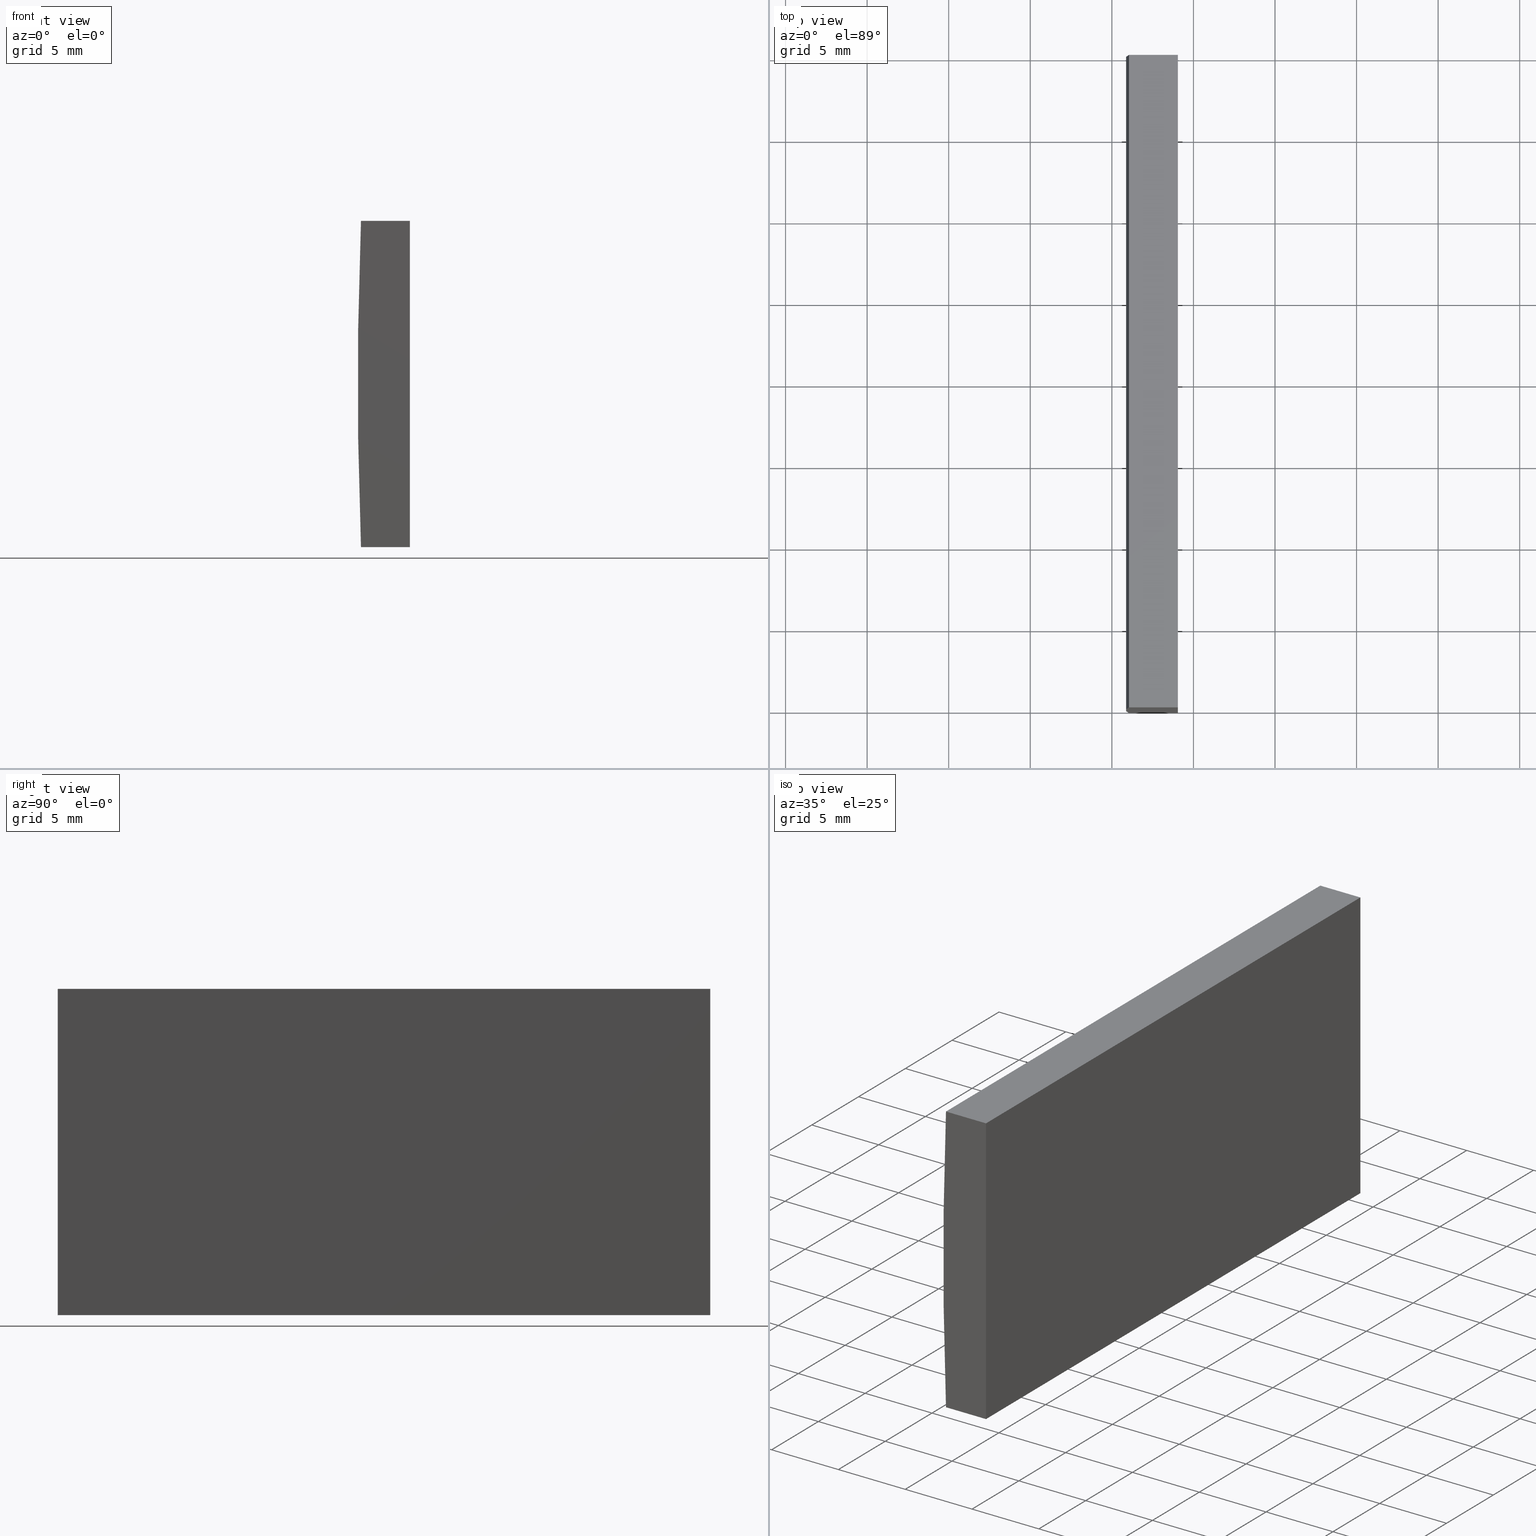
[diagram: canonical four-view strip — front | top / right | iso, engineering-drawing reading convention]
A machine part, canonical four-view strip (front | top / right | iso — engineering-drawing reading convention). The complete STEP part file that produces these views, byte-faithful:
ISO-10303-21;
HEADER;
FILE_DESCRIPTION (( 'STEP AP214' ),
    '1' );
FILE_NAME ('155054.STEP',
    '2019-06-18T06:33:04',
    ( 'user' ),
    ( '΢���й�' ),
    'SwSTEP 2.0',
    'SolidWorks 2016',
    '' );
FILE_SCHEMA (( 'AUTOMOTIVE_DESIGN' ));
ENDSEC;

DATA;
#1 = CARTESIAN_POINT ( 'NONE',  ( -253.9512996483044300, 40.00000000000000000, 10.00000000000000000 ) ) ;
#2 = ADVANCED_FACE ( 'NONE', ( #165 ), #25, .F. ) ;
#3 = VECTOR ( 'NONE', #51, 1000.000000000000000 ) ;
#4 = PRESENTATION_STYLE_ASSIGNMENT (( #184 ) ) ;
#5 = DIRECTION ( 'NONE',  ( 0.0000000000000000000, 0.0000000000000000000, -1.000000000000000000 ) ) ;
#6 = DIRECTION ( 'NONE',  ( 0.0000000000000000000, 1.000000000000000000, 0.0000000000000000000 ) ) ;
#7 = VECTOR ( 'NONE', #144, 1000.000000000000000 ) ;
#8 = CARTESIAN_POINT ( 'NONE',  ( 4.355204334851265500, 40.00000000000000000, 4.286263797015675000E-017 ) ) ;
#9 = LINE ( 'NONE', #14, #74 ) ;
#10 = VECTOR ( 'NONE', #166, 1000.000000000000000 ) ;
#11 = ORIENTED_EDGE ( 'NONE', *, *, #75, .F. ) ;
#12 = EDGE_CURVE ( 'NONE', #54, #113, #101, .T. ) ;
#13 = DIRECTION ( 'NONE',  ( -1.000000000000000000, 0.0000000000000000000, -0.0000000000000000000 ) ) ;
#14 = CARTESIAN_POINT ( 'NONE',  ( -250.9547956651486800, 40.00000000000000000, -9.999999999999941400 ) ) ;
#15 = CARTESIAN_POINT ( 'NONE',  ( 4.355204334851265500, 0.0000000000000000000, 4.286263797015675000E-017 ) ) ;
#16 = DIRECTION ( 'NONE',  ( -1.000000000000000000, 0.0000000000000000000, 0.0000000000000000000 ) ) ;
#17 = AXIS2_PLACEMENT_3D ( 'NONE', #53, #79, #115 ) ;
#18 = DIRECTION ( 'NONE',  ( 1.000000000000000000, 0.0000000000000000000, 0.0000000000000000000 ) ) ;
#19 = CARTESIAN_POINT ( 'NONE',  ( -253.9512996483044300, 40.00000000000000000, 10.00000000000000000 ) ) ;
#20 = ORIENTED_EDGE ( 'NONE', *, *, #47, .F. ) ;
#21 = LINE ( 'NONE', #35, #7 ) ;
#22 = ORIENTED_EDGE ( 'NONE', *, *, #160, .T. ) ;
#23 = VERTEX_POINT ( 'NONE', #177 ) ;
#24 = LINE ( 'NONE', #83, #10 ) ;
#25 = PLANE ( 'NONE',  #182 ) ;
#26 = PRODUCT_DEFINITION ( 'δ֪', '', #199, #141 ) ;
#27 = ORIENTED_EDGE ( 'NONE', *, *, #160, .F. ) ;
#28 = PRESENTATION_STYLE_ASSIGNMENT (( #156 ) ) ;
#29 = VECTOR ( 'NONE', #169, 1000.000000000000000 ) ;
#30 = CARTESIAN_POINT ( 'NONE',  ( -253.9512996483044300, 40.00000000000000000, -10.00000000000000000 ) ) ;
#31 = CARTESIAN_POINT ( 'NONE',  ( 4.355204334851265500, 40.00000000000000000, 4.286263797015675000E-017 ) ) ;
#32 = CLOSED_SHELL ( 'NONE', ( #170, #60, #152, #132, #129, #2 ) ) ;
#33 = APPLICATION_PROTOCOL_DEFINITION ( 'draft international standard', 'automotive_design', 1998, #72 ) ;
#34 = CARTESIAN_POINT ( 'NONE',  ( -250.9547956651486800, 40.00000000000000000, 10.00000000000000000 ) ) ;
#35 = CARTESIAN_POINT ( 'NONE',  ( -253.9512996483044300, 0.0000000000000000000, 10.00000000000000000 ) ) ;
#36 = EDGE_CURVE ( 'NONE', #145, #23, #59, .T. ) ;
#37 = LINE ( 'NONE', #95, #57 ) ;
#38 = EDGE_LOOP ( 'NONE', ( #100, #58, #151, #149 ) ) ;
#39 = FACE_OUTER_BOUND ( 'NONE', #50, .T. ) ;
#40 = ORIENTED_EDGE ( 'NONE', *, *, #98, .F. ) ;
#41 = PRODUCT_RELATED_PRODUCT_CATEGORY ( 'part', '', ( #52 ) ) ;
#42 = DIRECTION ( 'NONE',  ( -0.0000000000000000000, -0.0000000000000000000, -1.000000000000000000 ) ) ;
#43 = CARTESIAN_POINT ( 'NONE',  ( -253.9512996483044300, 40.00000000000000000, -10.00000000000000000 ) ) ;
#44 = STYLED_ITEM ( 'NONE', ( #28 ), #192 ) ;
#45 = DIRECTION ( 'NONE',  ( -1.000000000000000000, -0.0000000000000000000, -1.968313692047762200E-014 ) ) ;
#46 = SURFACE_SIDE_STYLE ('',( #71 ) ) ;
#47 = EDGE_CURVE ( 'NONE', #194, #157, #201, .T. ) ;
#48 = DIRECTION ( 'NONE',  ( 0.0000000000000000000, -0.0000000000000000000, 1.000000000000000000 ) ) ;
#49 = EDGE_LOOP ( 'NONE', ( #55, #27, #198, #155 ) ) ;
#50 = EDGE_LOOP ( 'NONE', ( #203, #106, #180, #22 ) ) ;
#51 = DIRECTION ( 'NONE',  ( -0.0000000000000000000, -0.0000000000000000000, -1.000000000000000000 ) ) ;
#52 = PRODUCT ( '155054', '155054', '', ( #139 ) ) ;
#53 = CARTESIAN_POINT ( 'NONE',  ( 0.0000000000000000000, 0.0000000000000000000, 0.0000000000000000000 ) ) ;
#54 = VERTEX_POINT ( 'NONE', #130 ) ;
#55 = ORIENTED_EDGE ( 'NONE', *, *, #98, .T. ) ;
#56 = STYLED_ITEM ( 'NONE', ( #4 ), #109 ) ;
#57 = VECTOR ( 'NONE', #42, 1000.000000000000000 ) ;
#58 = ORIENTED_EDGE ( 'NONE', *, *, #191, .F. ) ;
#59 = LINE ( 'NONE', #43, #107 ) ;
#60 = ADVANCED_FACE ( 'NONE', ( #126 ), #171, .F. ) ;
#61 = ORIENTED_EDGE ( 'NONE', *, *, #140, .F. ) ;
#62 = EDGE_LOOP ( 'NONE', ( #85, #92, #197, #118 ) ) ;
#63 = CARTESIAN_POINT ( 'NONE',  ( -250.9547956651486800, 40.00000000000000000, 10.00000000000000000 ) ) ;
#64 =( LENGTH_UNIT ( ) NAMED_UNIT ( * ) SI_UNIT ( .MILLI., .METRE. ) );
#65 = ORIENTED_EDGE ( 'NONE', *, *, #105, .T. ) ;
#66 = PRESENTATION_LAYER_ASSIGNMENT (  '', '', ( #44 ) ) ;
#67 = DIRECTION ( 'NONE',  ( -0.0000000000000000000, -1.000000000000000000, -0.0000000000000000000 ) ) ;
#68 = PLANE ( 'NONE',  #133 ) ;
#69 = VERTEX_POINT ( 'NONE', #112 ) ;
#70 = VERTEX_POINT ( 'NONE', #19 ) ;
#71 = SURFACE_STYLE_FILL_AREA ( #147 ) ;
#72 = APPLICATION_CONTEXT ( 'automotive_design' ) ;
#73 = FILL_AREA_STYLE_COLOUR ( '', #163 ) ;
#74 = VECTOR ( 'NONE', #161, 1000.000000000000000 ) ;
#75 = EDGE_CURVE ( 'NONE', #113, #69, #202, .T. ) ;
#76 = CARTESIAN_POINT ( 'NONE',  ( -250.9547956651486800, 40.00000000000000000, -9.999999999999941400 ) ) ;
#77 = VECTOR ( 'NONE', #67, 1000.000000000000000 ) ;
#78 = EDGE_CURVE ( 'NONE', #23, #70, #143, .T. ) ;
#79 = DIRECTION ( 'NONE',  ( 0.0000000000000000000, 0.0000000000000000000, 1.000000000000000000 ) ) ;
#80 = FILL_AREA_STYLE ('',( #73 ) ) ;
#81 = MECHANICAL_DESIGN_GEOMETRIC_PRESENTATION_REPRESENTATION (  '', ( #44 ), #128 ) ;
#82 = CARTESIAN_POINT ( 'NONE',  ( -250.9547956651486800, 0.0000000000000000000, 10.00000000000000000 ) ) ;
#83 = CARTESIAN_POINT ( 'NONE',  ( -253.9512996483044300, 40.00000000000000000, 10.00000000000000000 ) ) ;
#84 = VECTOR ( 'NONE', #18, 1000.000000000000000 ) ;
#85 = ORIENTED_EDGE ( 'NONE', *, *, #78, .T. ) ;
#86 = PLANE ( 'NONE',  #187 ) ;
#87 = SHAPE_DEFINITION_REPRESENTATION ( #178, #192 ) ;
#88 =( NAMED_UNIT ( * ) SI_UNIT ( $, .STERADIAN. ) SOLID_ANGLE_UNIT ( ) );
#89 = CARTESIAN_POINT ( 'NONE',  ( -250.9547956651486800, 40.00000000000000000, -9.999999999999941400 ) ) ;
#90 = DIRECTION ( 'NONE',  ( -1.968313692047762200E-014, 0.0000000000000000000, 1.000000000000000000 ) ) ;
#91 = FACE_OUTER_BOUND ( 'NONE', #38, .T. ) ;
#92 = ORIENTED_EDGE ( 'NONE', *, *, #140, .T. ) ;
#93 = APPLICATION_CONTEXT ( 'automotive_design' ) ;
#94 = DIRECTION ( 'NONE',  ( 0.0000000000000000000, 0.0000000000000000000, 1.000000000000000000 ) ) ;
#95 = CARTESIAN_POINT ( 'NONE',  ( -250.9547956651486800, 0.0000000000000000000, -9.999999999999941400 ) ) ;
#96 = FACE_OUTER_BOUND ( 'NONE', #62, .T. ) ;
#97 =( NAMED_UNIT ( * ) PLANE_ANGLE_UNIT ( ) SI_UNIT ( $, .RADIAN. ) );
#98 = EDGE_CURVE ( 'NONE', #157, #54, #37, .T. ) ;
#99 =( NAMED_UNIT ( * ) PLANE_ANGLE_UNIT ( ) SI_UNIT ( $, .RADIAN. ) );
#100 = ORIENTED_EDGE ( 'NONE', *, *, #75, .T. ) ;
#101 = LINE ( 'NONE', #181, #104 ) ;
#102 = EDGE_LOOP ( 'NONE', ( #65, #20, #61, #164 ) ) ;
#103 = DIRECTION ( 'NONE',  ( 0.0000000000000000000, 0.0000000000000000000, 1.000000000000000000 ) ) ;
#104 = VECTOR ( 'NONE', #45, 1000.000000000000000 ) ;
#105 = EDGE_CURVE ( 'NONE', #69, #157, #21, .T. ) ;
#106 = ORIENTED_EDGE ( 'NONE', *, *, #204, .F. ) ;
#107 = VECTOR ( 'NONE', #111, 1000.000000000000000 ) ;
#108 = CYLINDRICAL_SURFACE ( 'NONE', #120, 258.5000000000000600 ) ;
#109 = MANIFOLD_SOLID_BREP ( '͹̨-����1', #32 ) ;
#110 = FACE_OUTER_BOUND ( 'NONE', #49, .T. ) ;
#111 = DIRECTION ( 'NONE',  ( -1.000000000000000000, -0.0000000000000000000, -1.968313692047762200E-014 ) ) ;
#112 = CARTESIAN_POINT ( 'NONE',  ( -253.9512996483044300, 0.0000000000000000000, 10.00000000000000000 ) ) ;
#113 = VERTEX_POINT ( 'NONE', #142 ) ;
#114 = ORIENTED_EDGE ( 'NONE', *, *, #12, .F. ) ;
#115 = DIRECTION ( 'NONE',  ( 1.000000000000000000, 0.0000000000000000000, 0.0000000000000000000 ) ) ;
#116 =( GEOMETRIC_REPRESENTATION_CONTEXT ( 3 ) GLOBAL_UNCERTAINTY_ASSIGNED_CONTEXT ( ( #176 ) ) GLOBAL_UNIT_ASSIGNED_CONTEXT ( ( #183, #172, #148 ) ) REPRESENTATION_CONTEXT ( 'NONE', 'WORKASPACE' ) );
#117 = DIRECTION ( 'NONE',  ( -0.0000000000000000000, -1.000000000000000000, -0.0000000000000000000 ) ) ;
#118 = ORIENTED_EDGE ( 'NONE', *, *, #36, .T. ) ;
#119 = APPLICATION_PROTOCOL_DEFINITION ( 'draft international standard', 'automotive_design', 1998, #93 ) ;
#120 = AXIS2_PLACEMENT_3D ( 'NONE', #188, #117, #137 ) ;
#121 =( NAMED_UNIT ( * ) SI_UNIT ( $, .STERADIAN. ) SOLID_ANGLE_UNIT ( ) );
#122 = CARTESIAN_POINT ( 'NONE',  ( 4.355204334851265500, 0.0000000000000000000, 4.286263797015675000E-017 ) ) ;
#123 = EDGE_CURVE ( 'NONE', #194, #145, #135, .T. ) ;
#124 = FILL_AREA_STYLE_COLOUR ( '', #158 ) ;
#125 = MECHANICAL_DESIGN_GEOMETRIC_PRESENTATION_REPRESENTATION (  '', ( #56 ), #173 ) ;
#126 = FACE_OUTER_BOUND ( 'NONE', #102, .T. ) ;
#127 = UNCERTAINTY_MEASURE_WITH_UNIT (LENGTH_MEASURE( 1.000000000000000100E-005 ), #64, 'distance_accuracy_value', 'NONE');
#128 =( GEOMETRIC_REPRESENTATION_CONTEXT ( 3 ) GLOBAL_UNCERTAINTY_ASSIGNED_CONTEXT ( ( #196 ) ) GLOBAL_UNIT_ASSIGNED_CONTEXT ( ( #186, #99, #88 ) ) REPRESENTATION_CONTEXT ( 'NONE', 'WORKASPACE' ) );
#129 = ADVANCED_FACE ( 'NONE', ( #96 ), #159, .T. ) ;
#130 = CARTESIAN_POINT ( 'NONE',  ( -250.9547956651486800, 0.0000000000000000000, -9.999999999999941400 ) ) ;
#131 = DIRECTION ( 'NONE',  ( 0.0000000000000000000, 1.000000000000000000, 0.0000000000000000000 ) ) ;
#132 = ADVANCED_FACE ( 'NONE', ( #39 ), #68, .F. ) ;
#133 = AXIS2_PLACEMENT_3D ( 'NONE', #175, #90, #190 ) ;
#134 = LINE ( 'NONE', #136, #84 ) ;
#135 = LINE ( 'NONE', #76, #3 ) ;
#136 = CARTESIAN_POINT ( 'NONE',  ( -253.9512996483044300, 40.00000000000000000, 10.00000000000000000 ) ) ;
#137 = DIRECTION ( 'NONE',  ( 0.0000000000000000000, 0.0000000000000000000, -1.000000000000000000 ) ) ;
#138 = DIRECTION ( 'NONE',  ( 0.0000000000000000000, 1.000000000000000000, 0.0000000000000000000 ) ) ;
#139 = PRODUCT_CONTEXT ( 'NONE', #72, 'mechanical' ) ;
#140 = EDGE_CURVE ( 'NONE', #70, #194, #134, .T. ) ;
#141 = PRODUCT_DEFINITION_CONTEXT ( 'detailed design', #93, 'design' ) ;
#142 = CARTESIAN_POINT ( 'NONE',  ( -253.9512996483044300, 0.0000000000000000000, -10.00000000000000000 ) ) ;
#143 = CIRCLE ( 'NONE', #154, 258.5000000000000600 ) ;
#144 = DIRECTION ( 'NONE',  ( 1.000000000000000000, 0.0000000000000000000, 0.0000000000000000000 ) ) ;
#145 = VERTEX_POINT ( 'NONE', #153 ) ;
#146 = AXIS2_PLACEMENT_3D ( 'NONE', #31, #6, #189 ) ;
#147 = FILL_AREA_STYLE ('',( #124 ) ) ;
#148 =( NAMED_UNIT ( * ) SI_UNIT ( $, .STERADIAN. ) SOLID_ANGLE_UNIT ( ) );
#149 = ORIENTED_EDGE ( 'NONE', *, *, #204, .T. ) ;
#150 = DIRECTION ( 'NONE',  ( 0.0000000000000000000, 0.0000000000000000000, 1.000000000000000000 ) ) ;
#151 = ORIENTED_EDGE ( 'NONE', *, *, #78, .F. ) ;
#152 = ADVANCED_FACE ( 'NONE', ( #110 ), #86, .F. ) ;
#153 = CARTESIAN_POINT ( 'NONE',  ( -250.9547956651486800, 40.00000000000000000, -9.999999999999941400 ) ) ;
#154 = AXIS2_PLACEMENT_3D ( 'NONE', #8, #131, #103 ) ;
#155 = ORIENTED_EDGE ( 'NONE', *, *, #47, .T. ) ;
#156 = SURFACE_STYLE_USAGE ( .BOTH. , #46 ) ;
#157 = VERTEX_POINT ( 'NONE', #82 ) ;
#158 = COLOUR_RGB ( '',1.000000000000000000, 1.000000000000000000, 1.000000000000000000 ) ;
#159 = PLANE ( 'NONE',  #146 ) ;
#160 = EDGE_CURVE ( 'NONE', #145, #54, #9, .T. ) ;
#161 = DIRECTION ( 'NONE',  ( -0.0000000000000000000, -1.000000000000000000, -0.0000000000000000000 ) ) ;
#162 = AXIS2_PLACEMENT_3D ( 'NONE', #1, #5, #13 ) ;
#163 = COLOUR_RGB ( '',1.000000000000000000, 1.000000000000000000, 1.000000000000000000 ) ;
#164 = ORIENTED_EDGE ( 'NONE', *, *, #191, .T. ) ;
#165 = FACE_OUTER_BOUND ( 'NONE', #200, .T. ) ;
#166 = DIRECTION ( 'NONE',  ( -0.0000000000000000000, -1.000000000000000000, -0.0000000000000000000 ) ) ;
#167 = SURFACE_SIDE_STYLE ('',( #174 ) ) ;
#168 = ORIENTED_EDGE ( 'NONE', *, *, #105, .F. ) ;
#169 = DIRECTION ( 'NONE',  ( -0.0000000000000000000, -1.000000000000000000, -0.0000000000000000000 ) ) ;
#170 = ADVANCED_FACE ( 'NONE', ( #91 ), #108, .T. ) ;
#171 = PLANE ( 'NONE',  #162 ) ;
#172 =( NAMED_UNIT ( * ) PLANE_ANGLE_UNIT ( ) SI_UNIT ( $, .RADIAN. ) );
#173 =( GEOMETRIC_REPRESENTATION_CONTEXT ( 3 ) GLOBAL_UNCERTAINTY_ASSIGNED_CONTEXT ( ( #127 ) ) GLOBAL_UNIT_ASSIGNED_CONTEXT ( ( #64, #97, #121 ) ) REPRESENTATION_CONTEXT ( 'NONE', 'WORKASPACE' ) );
#174 = SURFACE_STYLE_FILL_AREA ( #80 ) ;
#175 = CARTESIAN_POINT ( 'NONE',  ( -253.9512996483044300, 40.00000000000000000, -10.00000000000000000 ) ) ;
#176 = UNCERTAINTY_MEASURE_WITH_UNIT (LENGTH_MEASURE( 1.000000000000000100E-005 ), #183, 'distance_accuracy_value', 'NONE');
#177 = CARTESIAN_POINT ( 'NONE',  ( -253.9512996483044300, 40.00000000000000000, -10.00000000000000000 ) ) ;
#178 = PRODUCT_DEFINITION_SHAPE ( 'NONE', 'NONE',  #26 ) ;
#179 = PRESENTATION_LAYER_ASSIGNMENT (  '', '', ( #56 ) ) ;
#180 = ORIENTED_EDGE ( 'NONE', *, *, #36, .F. ) ;
#181 = CARTESIAN_POINT ( 'NONE',  ( -253.9512996483044300, 0.0000000000000000000, -10.00000000000000000 ) ) ;
#182 = AXIS2_PLACEMENT_3D ( 'NONE', #15, #185, #48 ) ;
#183 =( LENGTH_UNIT ( ) NAMED_UNIT ( * ) SI_UNIT ( .MILLI., .METRE. ) );
#184 = SURFACE_STYLE_USAGE ( .BOTH. , #167 ) ;
#185 = DIRECTION ( 'NONE',  ( 0.0000000000000000000, 1.000000000000000000, 0.0000000000000000000 ) ) ;
#186 =( LENGTH_UNIT ( ) NAMED_UNIT ( * ) SI_UNIT ( .MILLI., .METRE. ) );
#187 = AXIS2_PLACEMENT_3D ( 'NONE', #89, #16, #94 ) ;
#188 = CARTESIAN_POINT ( 'NONE',  ( 4.355204334851265500, 40.00000000000000000, 4.286263797015675000E-017 ) ) ;
#189 = DIRECTION ( 'NONE',  ( 0.0000000000000000000, -0.0000000000000000000, 1.000000000000000000 ) ) ;
#190 = DIRECTION ( 'NONE',  ( 1.000000000000000000, 0.0000000000000000000, 1.968313692047762200E-014 ) ) ;
#191 = EDGE_CURVE ( 'NONE', #70, #69, #24, .T. ) ;
#192 = ADVANCED_BREP_SHAPE_REPRESENTATION ( '155054', ( #109, #17 ), #116 ) ;
#193 = AXIS2_PLACEMENT_3D ( 'NONE', #122, #138, #150 ) ;
#194 = VERTEX_POINT ( 'NONE', #34 ) ;
#195 = LINE ( 'NONE', #30, #77 ) ;
#196 = UNCERTAINTY_MEASURE_WITH_UNIT (LENGTH_MEASURE( 1.000000000000000100E-005 ), #186, 'distance_accuracy_value', 'NONE');
#197 = ORIENTED_EDGE ( 'NONE', *, *, #123, .T. ) ;
#198 = ORIENTED_EDGE ( 'NONE', *, *, #123, .F. ) ;
#199 = PRODUCT_DEFINITION_FORMATION_WITH_SPECIFIED_SOURCE ( '�κ�', '', #52, .NOT_KNOWN. ) ;
#200 = EDGE_LOOP ( 'NONE', ( #11, #114, #40, #168 ) ) ;
#201 = LINE ( 'NONE', #63, #29 ) ;
#202 = CIRCLE ( 'NONE', #193, 258.5000000000000600 ) ;
#203 = ORIENTED_EDGE ( 'NONE', *, *, #12, .T. ) ;
#204 = EDGE_CURVE ( 'NONE', #23, #113, #195, .T. ) ;
ENDSEC;
END-ISO-10303-21;
